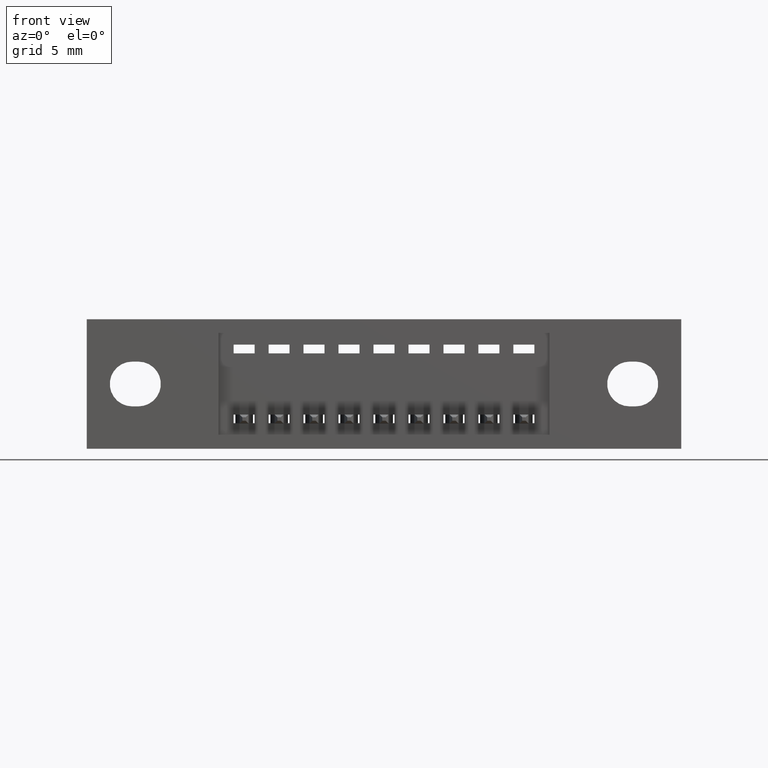
[diagram: clean part render]
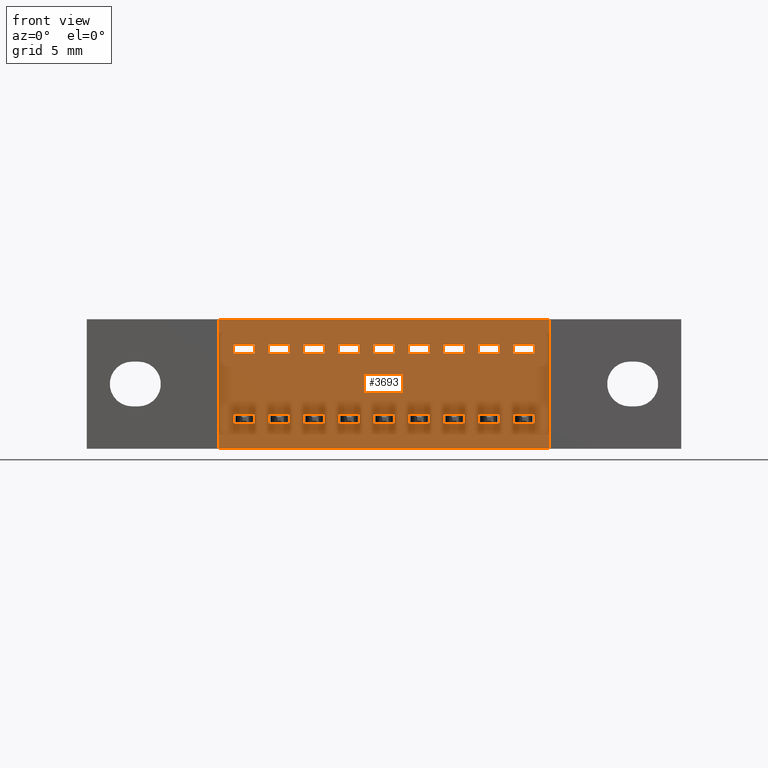
[diagram: same view with one face highlighted and labeled with its STEP entity id]
A machine part, front view. The second image highlights one B-rep face of the part: STEP entity #3693.
In plain terms, the highlighted planar face has unit normal (0, 1, 0).
Its self-contained STEP definition (entity closure, byte-faithful):
#62 = EDGE_LOOP ( 'NONE', ( #5073, #6494, #3613, #6373 ) ) ;
#76 = EDGE_CURVE ( 'NONE', #1878, #2244, #144, .T. ) ;
#88 = LINE ( 'NONE', #1581, #8224 ) ;
#100 = LINE ( 'NONE', #6465, #1945 ) ;
#104 = EDGE_LOOP ( 'NONE', ( #4591, #6000, #6724, #5411 ) ) ;
#116 = DIRECTION ( 'NONE',  ( 0.0000000000000000000, 3.414809992080328000E-016, -1.000000000000000000 ) ) ;
#144 = LINE ( 'NONE', #411, #7847 ) ;
#153 = ORIENTED_EDGE ( 'NONE', *, *, #2979, .T. ) ;
#164 = ORIENTED_EDGE ( 'NONE', *, *, #2615, .T. ) ;
#181 = VERTEX_POINT ( 'NONE', #6427 ) ;
#182 = CARTESIAN_POINT ( 'NONE',  ( 0.6200000000000000000, 0.04000000000000000100, -0.2725000000000000800 ) ) ;
#195 = DIRECTION ( 'NONE',  ( 1.000000000000000000, -0.0000000000000000000, -0.0000000000000000000 ) ) ;
#207 = CARTESIAN_POINT ( 'NONE',  ( 0.8199999999999998400, 0.04000000000000000100, -0.2725000000000000800 ) ) ;
#220 = VERTEX_POINT ( 'NONE', #3926 ) ;
#237 = CARTESIAN_POINT ( 'NONE',  ( 0.5800000000000000700, 0.04000000000000000100, -0.09750000000000000300 ) ) ;
#267 = VECTOR ( 'NONE', #1044, 39.37007874015748100 ) ;
#275 = CARTESIAN_POINT ( 'NONE',  ( 0.8799999999999998900, 0.04000000000000000800, -0.07250000000000002300 ) ) ;
#283 = VERTEX_POINT ( 'NONE', #5546 ) ;
#290 = VERTEX_POINT ( 'NONE', #9446 ) ;
#299 = VECTOR ( 'NONE', #1269, 39.37007874015748100 ) ;
#301 = CARTESIAN_POINT ( 'NONE',  ( 1.220000000000000000, 0.04000000000000000800, -0.07250000000000009200 ) ) ;
#316 = DIRECTION ( 'NONE',  ( 0.0000000000000000000, 3.414809992080328000E-016, -1.000000000000000000 ) ) ;
#324 = DIRECTION ( 'NONE',  ( -0.0000000000000000000, -3.414809992080328000E-016, -1.000000000000000000 ) ) ;
#360 = LINE ( 'NONE', #980, #4294 ) ;
#385 = CARTESIAN_POINT ( 'NONE',  ( 0.4799999999999999800, 0.04000000000000000100, -0.2725000000000000200 ) ) ;
#407 = VECTOR ( 'NONE', #9401, 39.37007874015748100 ) ;
#411 = CARTESIAN_POINT ( 'NONE',  ( 0.5200000000000000200, 0.04000000000000000800, -0.2975000000000000400 ) ) ;
#446 = EDGE_LOOP ( 'NONE', ( #1907, #1870, #2318, #5008 ) ) ;
#448 = LINE ( 'NONE', #2059, #4398 ) ;
#455 = CARTESIAN_POINT ( 'NONE',  ( 1.119999999999999900, 0.04000000000000000100, -0.09750000000000008700 ) ) ;
#495 = DIRECTION ( 'NONE',  ( -0.0000000000000000000, -3.414809992080328000E-016, -1.000000000000000000 ) ) ;
#503 = VECTOR ( 'NONE', #3456, 39.37007874015748100 ) ;
#520 = ORIENTED_EDGE ( 'NONE', *, *, #1410, .F. ) ;
#532 = VERTEX_POINT ( 'NONE', #3941 ) ;
#534 = LINE ( 'NONE', #7711, #299 ) ;
#579 = DIRECTION ( 'NONE',  ( -0.0000000000000000000, -3.414809992080328000E-016, -1.000000000000000000 ) ) ;
#620 = CARTESIAN_POINT ( 'NONE',  ( 0.5200000000000000200, 0.04000000000000000800, -0.07249999999999999500 ) ) ;
#626 = EDGE_CURVE ( 'NONE', #3559, #2278, #8825, .T. ) ;
#641 = CARTESIAN_POINT ( 'NONE',  ( 0.6799999999999999400, 0.04000000000000000100, -0.2725000000000000800 ) ) ;
#647 = VERTEX_POINT ( 'NONE', #2719 ) ;
#652 = CARTESIAN_POINT ( 'NONE',  ( 0.6200000000000000000, 0.04000000000000000100, -0.09750000000000001700 ) ) ;
#656 = DIRECTION ( 'NONE',  ( 1.000000000000000000, -0.0000000000000000000, -0.0000000000000000000 ) ) ;
#661 = VERTEX_POINT ( 'NONE', #7721 ) ;
#669 = VECTOR ( 'NONE', #5345, 39.37007874015748100 ) ;
#675 = ORIENTED_EDGE ( 'NONE', *, *, #1616, .T. ) ;
#687 = LINE ( 'NONE', #1887, #6869 ) ;
#706 = DIRECTION ( 'NONE',  ( 1.000000000000000000, -0.0000000000000000000, -0.0000000000000000000 ) ) ;
#712 = VECTOR ( 'NONE', #8978, 39.37007874015748100 ) ;
#721 = DIRECTION ( 'NONE',  ( -0.0000000000000000000, -3.414809992080328000E-016, -1.000000000000000000 ) ) ;
#741 = EDGE_CURVE ( 'NONE', #3522, #2236, #7724, .T. ) ;
#748 = LINE ( 'NONE', #1459, #3134 ) ;
#753 = VERTEX_POINT ( 'NONE', #6500 ) ;
#758 = LINE ( 'NONE', #1200, #2639 ) ;
#769 = LINE ( 'NONE', #3561, #503 ) ;
#773 = DIRECTION ( 'NONE',  ( -0.0000000000000000000, -0.0000000000000000000, -1.000000000000000000 ) ) ;
#813 = CARTESIAN_POINT ( 'NONE',  ( 1.020000000000000000, 0.04000000000000000100, -0.2725000000000000800 ) ) ;
#821 = FACE_BOUND ( 'NONE', #9665, .T. ) ;
#859 = VERTEX_POINT ( 'NONE', #6136 ) ;
#875 = CARTESIAN_POINT ( 'NONE',  ( 0.8199999999999998400, 0.04000000000000000100, -0.2725000000000000800 ) ) ;
#888 = VERTEX_POINT ( 'NONE', #1792 ) ;
#903 = VECTOR ( 'NONE', #4555, 39.37007874015748100 ) ;
#906 = EDGE_CURVE ( 'NONE', #9666, #5195, #2499, .T. ) ;
#910 = LINE ( 'NONE', #9430, #407 ) ;
#927 = VECTOR ( 'NONE', #1437, 39.37007874015748100 ) ;
#931 = CARTESIAN_POINT ( 'NONE',  ( 0.5200000000000000200, 0.04000000000000000100, -0.09750000000000000300 ) ) ;
#939 = EDGE_CURVE ( 'NONE', #1382, #8822, #4302, .T. ) ;
#979 = CARTESIAN_POINT ( 'NONE',  ( 0.5200000000000000200, 0.04000000000000000800, -0.07249999999999999500 ) ) ;
#980 = CARTESIAN_POINT ( 'NONE',  ( 1.020000000000000000, 0.04000000000000000100, -0.2725000000000000800 ) ) ;
#1005 = CARTESIAN_POINT ( 'NONE',  ( 0.5200000000000000200, 0.04000000000000000100, -0.2725000000000000200 ) ) ;
#1026 = VERTEX_POINT ( 'NONE', #4236 ) ;
#1032 = DIRECTION ( 'NONE',  ( -0.0000000000000000000, -3.414809992080328000E-016, -1.000000000000000000 ) ) ;
#1034 = ORIENTED_EDGE ( 'NONE', *, *, #8713, .T. ) ;
#1044 = DIRECTION ( 'NONE',  ( 1.000000000000000000, -0.0000000000000000000, -0.0000000000000000000 ) ) ;
#1065 = FACE_BOUND ( 'NONE', #62, .T. ) ;
#1077 = LINE ( 'NONE', #5380, #2706 ) ;
#1099 = CARTESIAN_POINT ( 'NONE',  ( 1.323000000000000200, 0.04000000000000000100, -1.895600338963814900E-033 ) ) ;
#1111 = CARTESIAN_POINT ( 'NONE',  ( 1.220000000000000000, 0.04000000000000000100, -0.09750000000000008700 ) ) ;
#1126 = VECTOR ( 'NONE', #316, 39.37007874015748100 ) ;
#1152 = ORIENTED_EDGE ( 'NONE', *, *, #9307, .F. ) ;
#1168 = DIRECTION ( 'NONE',  ( 0.0000000000000000000, 3.414809992080328000E-016, -1.000000000000000000 ) ) ;
#1172 = EDGE_CURVE ( 'NONE', #8508, #9389, #7934, .T. ) ;
#1194 = LINE ( 'NONE', #4751, #3082 ) ;
#1200 = CARTESIAN_POINT ( 'NONE',  ( 0.4200000000000000400, 0.04000000000000000100, -0.2725000000000000200 ) ) ;
#1228 = DIRECTION ( 'NONE',  ( 1.000000000000000000, -0.0000000000000000000, -0.0000000000000000000 ) ) ;
#1269 = DIRECTION ( 'NONE',  ( -0.0000000000000000000, -3.414809992080328000E-016, -1.000000000000000000 ) ) ;
#1278 = EDGE_CURVE ( 'NONE', #1976, #1642, #8938, .T. ) ;
#1283 = CARTESIAN_POINT ( 'NONE',  ( 0.3770000000000000600, 0.04000000000000000100, -0.3700000000000000000 ) ) ;
#1289 = VERTEX_POINT ( 'NONE', #7112 ) ;
#1293 = VECTOR ( 'NONE', #8884, 39.37007874015748100 ) ;
#1300 = VERTEX_POINT ( 'NONE', #3075 ) ;
#1312 = FACE_OUTER_BOUND ( 'NONE', #2344, .T. ) ;
#1323 = LINE ( 'NONE', #8301, #5475 ) ;
#1328 = CARTESIAN_POINT ( 'NONE',  ( 0.6799999999999999400, 0.04000000000000000800, -0.07250000000000000900 ) ) ;
#1352 = DIRECTION ( 'NONE',  ( 0.0000000000000000000, 3.414809992080328000E-016, -1.000000000000000000 ) ) ;
#1368 = EDGE_CURVE ( 'NONE', #8605, #3422, #360, .T. ) ;
#1382 = VERTEX_POINT ( 'NONE', #979 ) ;
#1393 = DIRECTION ( 'NONE',  ( -0.0000000000000000000, -3.414809992080328000E-016, -1.000000000000000000 ) ) ;
#1399 = EDGE_LOOP ( 'NONE', ( #5695, #4814, #5482, #5718 ) ) ;
#1410 = EDGE_CURVE ( 'NONE', #859, #5330, #5839, .T. ) ;
#1437 = DIRECTION ( 'NONE',  ( 0.0000000000000000000, 3.414809992080328000E-016, -1.000000000000000000 ) ) ;
#1445 = CARTESIAN_POINT ( 'NONE',  ( 0.4200000000000000400, 0.04000000000000000100, -0.09749999999999998900 ) ) ;
#1459 = CARTESIAN_POINT ( 'NONE',  ( 1.020000000000000000, 0.04000000000000000100, -0.09750000000000007300 ) ) ;
#1480 = DIRECTION ( 'NONE',  ( 1.000000000000000000, -0.0000000000000000000, -0.0000000000000000000 ) ) ;
#1485 = EDGE_CURVE ( 'NONE', #220, #4688, #5151, .T. ) ;
#1530 = LINE ( 'NONE', #8554, #1293 ) ;
#1547 = FACE_BOUND ( 'NONE', #3012, .T. ) ;
#1561 = DIRECTION ( 'NONE',  ( 1.000000000000000000, -0.0000000000000000000, -0.0000000000000000000 ) ) ;
#1563 = ORIENTED_EDGE ( 'NONE', *, *, #3028, .T. ) ;
#1571 = CARTESIAN_POINT ( 'NONE',  ( 0.5800000000000000700, 0.04000000000000000100, -0.2725000000000000200 ) ) ;
#1581 = CARTESIAN_POINT ( 'NONE',  ( 1.119999999999999900, 0.04000000000000000100, -0.2725000000000001300 ) ) ;
#1591 = LINE ( 'NONE', #3574, #5275 ) ;
#1613 = ORIENTED_EDGE ( 'NONE', *, *, #8053, .F. ) ;
#1616 = EDGE_CURVE ( 'NONE', #2652, #6038, #9577, .T. ) ;
#1618 = VERTEX_POINT ( 'NONE', #5511 ) ;
#1621 = ORIENTED_EDGE ( 'NONE', *, *, #2293, .T. ) ;
#1639 = VERTEX_POINT ( 'NONE', #7861 ) ;
#1642 = VERTEX_POINT ( 'NONE', #8056 ) ;
#1671 = VERTEX_POINT ( 'NONE', #2248 ) ;
#1691 = ORIENTED_EDGE ( 'NONE', *, *, #1936, .T. ) ;
#1698 = DIRECTION ( 'NONE',  ( -0.0000000000000000000, 1.000000000000000000, 0.0000000000000000000 ) ) ;
#1734 = ORIENTED_EDGE ( 'NONE', *, *, #1172, .F. ) ;
#1747 = EDGE_LOOP ( 'NONE', ( #6645, #7507, #3064, #2328 ) ) ;
#1774 = LINE ( 'NONE', #7904, #3629 ) ;
#1782 = ORIENTED_EDGE ( 'NONE', *, *, #7633, .T. ) ;
#1792 = CARTESIAN_POINT ( 'NONE',  ( 1.179999999999999900, 0.04000000000000000800, -0.07250000000000007800 ) ) ;
#1793 = DIRECTION ( 'NONE',  ( -0.0000000000000000000, -3.414809992080328000E-016, -1.000000000000000000 ) ) ;
#1794 = VERTEX_POINT ( 'NONE', #6617 ) ;
#1805 = FACE_BOUND ( 'NONE', #1747, .T. ) ;
#1819 = LINE ( 'NONE', #4288, #2081 ) ;
#1820 = ORIENTED_EDGE ( 'NONE', *, *, #4637, .T. ) ;
#1845 = VECTOR ( 'NONE', #324, 39.37007874015748100 ) ;
#1855 = ORIENTED_EDGE ( 'NONE', *, *, #1997, .F. ) ;
#1870 = ORIENTED_EDGE ( 'NONE', *, *, #4430, .F. ) ;
#1875 = DIRECTION ( 'NONE',  ( 0.0000000000000000000, 3.414809992080328000E-016, -1.000000000000000000 ) ) ;
#1878 = VERTEX_POINT ( 'NONE', #2970 ) ;
#1882 = EDGE_CURVE ( 'NONE', #3477, #8310, #3807, .T. ) ;
#1883 = ORIENTED_EDGE ( 'NONE', *, *, #4203, .F. ) ;
#1887 = CARTESIAN_POINT ( 'NONE',  ( 0.7199999999999998600, 0.04000000000000000800, -0.2975000000000001000 ) ) ;
#1907 = ORIENTED_EDGE ( 'NONE', *, *, #7436, .F. ) ;
#1917 = CARTESIAN_POINT ( 'NONE',  ( 0.8799999999999998900, 0.04000000000000000100, -0.2725000000000000800 ) ) ;
#1936 = EDGE_CURVE ( 'NONE', #8508, #6655, #3570, .T. ) ;
#1940 = LINE ( 'NONE', #5407, #6055 ) ;
#1945 = VECTOR ( 'NONE', #5856, 39.37007874015748100 ) ;
#1962 = DIRECTION ( 'NONE',  ( 0.0000000000000000000, 3.414809992080328000E-016, -1.000000000000000000 ) ) ;
#1971 = DIRECTION ( 'NONE',  ( 0.0000000000000000000, 0.0000000000000000000, 1.000000000000000000 ) ) ;
#1976 = VERTEX_POINT ( 'NONE', #5706 ) ;
#1981 = VERTEX_POINT ( 'NONE', #4693 ) ;
#1997 = EDGE_CURVE ( 'NONE', #1026, #4969, #6680, .T. ) ;
#2033 = ORIENTED_EDGE ( 'NONE', *, *, #8898, .F. ) ;
#2059 = CARTESIAN_POINT ( 'NONE',  ( 0.4200000000000000400, 0.04000000000000000800, -0.2975000000000000400 ) ) ;
#2081 = VECTOR ( 'NONE', #8012, 39.37007874015748100 ) ;
#2098 = VECTOR ( 'NONE', #5523, 39.37007874015748100 ) ;
#2115 = LINE ( 'NONE', #2137, #3966 ) ;
#2117 = DIRECTION ( 'NONE',  ( 0.0000000000000000000, -0.0000000000000000000, 1.000000000000000000 ) ) ;
#2122 = DIRECTION ( 'NONE',  ( 0.0000000000000000000, 3.414809992080328000E-016, -1.000000000000000000 ) ) ;
#2137 = CARTESIAN_POINT ( 'NONE',  ( 0.9199999999999999300, 0.04000000000000000800, -0.07250000000000005100 ) ) ;
#2140 = ORIENTED_EDGE ( 'NONE', *, *, #9616, .F. ) ;
#2148 = ORIENTED_EDGE ( 'NONE', *, *, #9023, .F. ) ;
#2233 = ORIENTED_EDGE ( 'NONE', *, *, #6418, .F. ) ;
#2236 = VERTEX_POINT ( 'NONE', #6858 ) ;
#2244 = VERTEX_POINT ( 'NONE', #7768 ) ;
#2248 = CARTESIAN_POINT ( 'NONE',  ( 1.079999999999999800, 0.04000000000000000800, -0.07250000000000006400 ) ) ;
#2258 = EDGE_CURVE ( 'NONE', #9113, #753, #2716, .T. ) ;
#2278 = VERTEX_POINT ( 'NONE', #7943 ) ;
#2281 = DIRECTION ( 'NONE',  ( 1.000000000000000000, -0.0000000000000000000, -0.0000000000000000000 ) ) ;
#2293 = EDGE_CURVE ( 'NONE', #6655, #6560, #100, .T. ) ;
#2315 = CARTESIAN_POINT ( 'NONE',  ( 0.7199999999999998600, 0.04000000000000000100, -0.2725000000000000800 ) ) ;
#2318 = ORIENTED_EDGE ( 'NONE', *, *, #3396, .T. ) ;
#2328 = ORIENTED_EDGE ( 'NONE', *, *, #9357, .F. ) ;
#2344 = EDGE_LOOP ( 'NONE', ( #5616, #4724, #4750, #4763 ) ) ;
#2352 = EDGE_CURVE ( 'NONE', #1300, #2931, #7577, .T. ) ;
#2367 = VERTEX_POINT ( 'NONE', #7809 ) ;
#2447 = DIRECTION ( 'NONE',  ( 1.000000000000000000, -0.0000000000000000000, -0.0000000000000000000 ) ) ;
#2450 = ORIENTED_EDGE ( 'NONE', *, *, #9522, .F. ) ;
#2457 = EDGE_CURVE ( 'NONE', #7684, #5911, #448, .T. ) ;
#2458 = VECTOR ( 'NONE', #7317, 39.37007874015748100 ) ;
#2499 = LINE ( 'NONE', #2645, #6343 ) ;
#2523 = CARTESIAN_POINT ( 'NONE',  ( 0.9199999999999999300, 0.04000000000000000100, -0.2725000000000000800 ) ) ;
#2533 = VERTEX_POINT ( 'NONE', #7937 ) ;
#2539 = ORIENTED_EDGE ( 'NONE', *, *, #5404, .T. ) ;
#2601 = VECTOR ( 'NONE', #9799, 39.37007874015748100 ) ;
#2615 = EDGE_CURVE ( 'NONE', #3770, #1671, #1323, .T. ) ;
#2639 = VECTOR ( 'NONE', #1168, 39.37007874015748100 ) ;
#2645 = CARTESIAN_POINT ( 'NONE',  ( 0.8199999999999998400, 0.04000000000000000800, -0.07250000000000002300 ) ) ;
#2652 = VERTEX_POINT ( 'NONE', #9531 ) ;
#2683 = EDGE_CURVE ( 'NONE', #888, #1639, #6766, .T. ) ;
#2696 = EDGE_CURVE ( 'NONE', #2367, #1618, #8445, .T. ) ;
#2699 = CARTESIAN_POINT ( 'NONE',  ( 0.7199999999999998600, 0.04000000000000000100, -0.09750000000000001700 ) ) ;
#2700 = EDGE_LOOP ( 'NONE', ( #4066, #5677, #6098, #5949 ) ) ;
#2706 = VECTOR ( 'NONE', #1971, 39.37007874015748100 ) ;
#2716 = LINE ( 'NONE', #1283, #8231 ) ;
#2719 = CARTESIAN_POINT ( 'NONE',  ( 0.9799999999999999800, 0.04000000000000000800, -0.07250000000000005100 ) ) ;
#2734 = CARTESIAN_POINT ( 'NONE',  ( 0.4200000000000000400, 0.04000000000000000100, -0.2725000000000000200 ) ) ;
#2761 = VERTEX_POINT ( 'NONE', #1445 ) ;
#2763 = ORIENTED_EDGE ( 'NONE', *, *, #4806, .F. ) ;
#2784 = LINE ( 'NONE', #5425, #669 ) ;
#2785 = DIRECTION ( 'NONE',  ( -0.0000000000000000000, -3.414809992080328000E-016, -1.000000000000000000 ) ) ;
#2812 = CARTESIAN_POINT ( 'NONE',  ( 1.220000000000000000, 0.04000000000000000100, -0.09750000000000008700 ) ) ;
#2817 = CARTESIAN_POINT ( 'NONE',  ( 1.220000000000000000, 0.04000000000000000800, -0.07250000000000009200 ) ) ;
#2862 = VECTOR ( 'NONE', #4811, 39.37007874015748100 ) ;
#2879 = EDGE_CURVE ( 'NONE', #3522, #532, #7106, .T. ) ;
#2931 = VERTEX_POINT ( 'NONE', #3249 ) ;
#2944 = FACE_BOUND ( 'NONE', #7614, .T. ) ;
#2970 = CARTESIAN_POINT ( 'NONE',  ( 0.5200000000000000200, 0.04000000000000000800, -0.2975000000000000400 ) ) ;
#2979 = EDGE_CURVE ( 'NONE', #7234, #4966, #6565, .T. ) ;
#3012 = EDGE_LOOP ( 'NONE', ( #2450, #1782, #1820, #1855 ) ) ;
#3026 = CARTESIAN_POINT ( 'NONE',  ( 0.4200000000000000400, 0.04000000000000000800, -0.2975000000000000400 ) ) ;
#3028 = EDGE_CURVE ( 'NONE', #7875, #3339, #5826, .T. ) ;
#3046 = CARTESIAN_POINT ( 'NONE',  ( 1.220000000000000000, 0.04000000000000000100, -0.2725000000000001300 ) ) ;
#3051 = VECTOR ( 'NONE', #8447, 39.37007874015748100 ) ;
#3064 = ORIENTED_EDGE ( 'NONE', *, *, #2683, .T. ) ;
#3075 = CARTESIAN_POINT ( 'NONE',  ( 1.179999999999999900, 0.04000000000000000100, -0.2725000000000001300 ) ) ;
#3082 = VECTOR ( 'NONE', #5501, 39.37007874015748100 ) ;
#3095 = LINE ( 'NONE', #237, #8569 ) ;
#3111 = VECTOR ( 'NONE', #7422, 39.37007874015748100 ) ;
#3129 = EDGE_CURVE ( 'NONE', #8605, #5522, #7118, .T. ) ;
#3134 = VECTOR ( 'NONE', #1793, 39.37007874015748100 ) ;
#3152 = CARTESIAN_POINT ( 'NONE',  ( 1.280000000000000000, 0.04000000000000000100, -0.09750000000000008700 ) ) ;
#3155 = ORIENTED_EDGE ( 'NONE', *, *, #3129, .T. ) ;
#3193 = FACE_BOUND ( 'NONE', #104, .T. ) ;
#3233 = CARTESIAN_POINT ( 'NONE',  ( 0.7799999999999999200, 0.04000000000000000100, -0.2975000000000001000 ) ) ;
#3235 = DIRECTION ( 'NONE',  ( 1.000000000000000000, -0.0000000000000000000, -0.0000000000000000000 ) ) ;
#3241 = EDGE_CURVE ( 'NONE', #6038, #6069, #7442, .T. ) ;
#3247 = LINE ( 'NONE', #385, #1126 ) ;
#3249 = CARTESIAN_POINT ( 'NONE',  ( 1.179999999999999900, 0.04000000000000000100, -0.2975000000000001500 ) ) ;
#3266 = LINE ( 'NONE', #4533, #903 ) ;
#3275 = VECTOR ( 'NONE', #6671, 39.37007874015748100 ) ;
#3296 = CARTESIAN_POINT ( 'NONE',  ( 0.6200000000000000000, 0.04000000000000000100, -0.09750000000000001700 ) ) ;
#3312 = EDGE_CURVE ( 'NONE', #9729, #3722, #1077, .T. ) ;
#3317 = EDGE_LOOP ( 'NONE', ( #9502, #675, #8726, #5072 ) ) ;
#3331 = VERTEX_POINT ( 'NONE', #4723 ) ;
#3339 = VERTEX_POINT ( 'NONE', #4710 ) ;
#3343 = CARTESIAN_POINT ( 'NONE',  ( 0.6799999999999999400, 0.04000000000000000100, -0.2975000000000001000 ) ) ;
#3385 = ORIENTED_EDGE ( 'NONE', *, *, #5495, .T. ) ;
#3390 = CARTESIAN_POINT ( 'NONE',  ( 0.9799999999999999800, 0.04000000000000000100, -0.09750000000000005900 ) ) ;
#3396 = EDGE_CURVE ( 'NONE', #3331, #1300, #88, .T. ) ;
#3399 = EDGE_CURVE ( 'NONE', #3722, #9113, #6309, .T. ) ;
#3422 = VERTEX_POINT ( 'NONE', #7716 ) ;
#3426 = FACE_BOUND ( 'NONE', #1399, .T. ) ;
#3456 = DIRECTION ( 'NONE',  ( 1.000000000000000000, -0.0000000000000000000, -0.0000000000000000000 ) ) ;
#3458 = EDGE_CURVE ( 'NONE', #5534, #1878, #5592, .T. ) ;
#3477 = VERTEX_POINT ( 'NONE', #6677 ) ;
#3487 = DIRECTION ( 'NONE',  ( 1.000000000000000000, -0.0000000000000000000, -0.0000000000000000000 ) ) ;
#3493 = DIRECTION ( 'NONE',  ( 1.000000000000000000, -0.0000000000000000000, -0.0000000000000000000 ) ) ;
#3522 = VERTEX_POINT ( 'NONE', #2315 ) ;
#3525 = VERTEX_POINT ( 'NONE', #7796 ) ;
#3559 = VERTEX_POINT ( 'NONE', #9461 ) ;
#3561 = CARTESIAN_POINT ( 'NONE',  ( 0.4200000000000000400, 0.04000000000000000100, -0.09749999999999998900 ) ) ;
#3570 = LINE ( 'NONE', #8927, #5141 ) ;
#3574 = CARTESIAN_POINT ( 'NONE',  ( 0.6200000000000000000, 0.04000000000000000800, -0.2975000000000001000 ) ) ;
#3613 = ORIENTED_EDGE ( 'NONE', *, *, #1485, .T. ) ;
#3629 = VECTOR ( 'NONE', #7814, 39.37007874015748100 ) ;
#3650 = VECTOR ( 'NONE', #2785, 39.37007874015748100 ) ;
#3659 = FACE_BOUND ( 'NONE', #2700, .T. ) ;
#3685 = CARTESIAN_POINT ( 'NONE',  ( 0.9799999999999999800, 0.04000000000000000100, -0.2725000000000000800 ) ) ;
#3693 = ADVANCED_FACE ( 'NONE', ( #1805, #5699, #1547, #9338, #7432, #3659, #5467, #3426, #1312, #9127, #7222, #5241, #3193, #1065, #8895, #6991, #5019, #2944, #821 ), #3707, .F. ) ;
#3707 = PLANE ( 'NONE',  #8877 ) ;
#3722 = VERTEX_POINT ( 'NONE', #6439 ) ;
#3735 = VECTOR ( 'NONE', #4865, 39.37007874015748100 ) ;
#3742 = DIRECTION ( 'NONE',  ( 1.000000000000000000, -0.0000000000000000000, -0.0000000000000000000 ) ) ;
#3770 = VERTEX_POINT ( 'NONE', #9189 ) ;
#3807 = LINE ( 'NONE', #6859, #9255 ) ;
#3907 = CARTESIAN_POINT ( 'NONE',  ( 0.5800000000000000700, 0.04000000000000000100, -0.2725000000000000200 ) ) ;
#3921 = EDGE_CURVE ( 'NONE', #532, #6738, #687, .T. ) ;
#3926 = CARTESIAN_POINT ( 'NONE',  ( 0.8199999999999998400, 0.04000000000000000100, -0.2725000000000000800 ) ) ;
#3941 = CARTESIAN_POINT ( 'NONE',  ( 0.7199999999999998600, 0.04000000000000000800, -0.2975000000000001000 ) ) ;
#3952 = VECTOR ( 'NONE', #1352, 39.37007874015748100 ) ;
#3966 = VECTOR ( 'NONE', #6754, 39.37007874015748100 ) ;
#3973 = VECTOR ( 'NONE', #656, 39.37007874015748100 ) ;
#3988 = CARTESIAN_POINT ( 'NONE',  ( 0.5200000000000000200, 0.04000000000000000100, -0.09750000000000000300 ) ) ;
#3999 = VERTEX_POINT ( 'NONE', #3988 ) ;
#4005 = EDGE_CURVE ( 'NONE', #4213, #5868, #9542, .T. ) ;
#4019 = CARTESIAN_POINT ( 'NONE',  ( 0.9799999999999999800, 0.04000000000000000100, -0.2975000000000001000 ) ) ;
#4021 = LINE ( 'NONE', #7103, #5799 ) ;
#4035 = VECTOR ( 'NONE', #6085, 39.37007874015748100 ) ;
#4066 = ORIENTED_EDGE ( 'NONE', *, *, #3921, .F. ) ;
#4089 = EDGE_LOOP ( 'NONE', ( #2140, #6503, #3155, #3385 ) ) ;
#4091 = LINE ( 'NONE', #1917, #7849 ) ;
#4170 = LINE ( 'NONE', #8896, #9804 ) ;
#4182 = VERTEX_POINT ( 'NONE', #7307 ) ;
#4203 = EDGE_CURVE ( 'NONE', #4182, #1981, #4250, .T. ) ;
#4213 = VERTEX_POINT ( 'NONE', #6917 ) ;
#4229 = VERTEX_POINT ( 'NONE', #3907 ) ;
#4231 = EDGE_CURVE ( 'NONE', #290, #5575, #4021, .T. ) ;
#4236 = CARTESIAN_POINT ( 'NONE',  ( 0.9199999999999999300, 0.04000000000000000100, -0.09750000000000005900 ) ) ;
#4250 = LINE ( 'NONE', #7144, #7990 ) ;
#4254 = VERTEX_POINT ( 'NONE', #2812 ) ;
#4279 = VECTOR ( 'NONE', #8867, 39.37007874015748100 ) ;
#4288 = CARTESIAN_POINT ( 'NONE',  ( 1.119999999999999900, 0.04000000000000000100, -0.09750000000000008700 ) ) ;
#4294 = VECTOR ( 'NONE', #9443, 39.37007874015748100 ) ;
#4302 = LINE ( 'NONE', #620, #8261 ) ;
#4331 = EDGE_CURVE ( 'NONE', #4229, #2244, #8997, .T. ) ;
#4367 = LINE ( 'NONE', #6634, #8091 ) ;
#4398 = VECTOR ( 'NONE', #2447, 39.37007874015748100 ) ;
#4430 = EDGE_CURVE ( 'NONE', #3331, #283, #4367, .T. ) ;
#4442 = CARTESIAN_POINT ( 'NONE',  ( 0.9199999999999999300, 0.04000000000000000100, -0.2725000000000000800 ) ) ;
#4470 = VECTOR ( 'NONE', #5277, 39.37007874015748100 ) ;
#4488 = VERTEX_POINT ( 'NONE', #9293 ) ;
#4533 = CARTESIAN_POINT ( 'NONE',  ( 0.9199999999999999300, 0.04000000000000000800, -0.2975000000000001000 ) ) ;
#4544 = EDGE_CURVE ( 'NONE', #753, #9729, #1530, .T. ) ;
#4555 = DIRECTION ( 'NONE',  ( 1.000000000000000000, -0.0000000000000000000, -0.0000000000000000000 ) ) ;
#4591 = ORIENTED_EDGE ( 'NONE', *, *, #4005, .F. ) ;
#4600 = ORIENTED_EDGE ( 'NONE', *, *, #7292, .T. ) ;
#4620 = ORIENTED_EDGE ( 'NONE', *, *, #2457, .F. ) ;
#4637 = EDGE_CURVE ( 'NONE', #647, #4969, #534, .T. ) ;
#4663 = ORIENTED_EDGE ( 'NONE', *, *, #5913, .T. ) ;
#4671 = LINE ( 'NONE', #8139, #5144 ) ;
#4688 = VERTEX_POINT ( 'NONE', #7199 ) ;
#4693 = CARTESIAN_POINT ( 'NONE',  ( 0.8799999999999998900, 0.04000000000000000100, -0.09750000000000003100 ) ) ;
#4710 = CARTESIAN_POINT ( 'NONE',  ( 0.7799999999999999200, 0.04000000000000000800, -0.07250000000000002300 ) ) ;
#4718 = CARTESIAN_POINT ( 'NONE',  ( 1.119999999999999900, 0.04000000000000000800, -0.2975000000000001500 ) ) ;
#4723 = CARTESIAN_POINT ( 'NONE',  ( 1.119999999999999900, 0.04000000000000000100, -0.2725000000000001300 ) ) ;
#4724 = ORIENTED_EDGE ( 'NONE', *, *, #3399, .T. ) ;
#4746 = EDGE_LOOP ( 'NONE', ( #2233, #1734, #1691, #1621 ) ) ;
#4750 = ORIENTED_EDGE ( 'NONE', *, *, #2258, .T. ) ;
#4751 = CARTESIAN_POINT ( 'NONE',  ( 1.020000000000000000, 0.04000000000000000800, -0.2975000000000001000 ) ) ;
#4763 = ORIENTED_EDGE ( 'NONE', *, *, #4544, .T. ) ;
#4781 = VECTOR ( 'NONE', #9474, 39.37007874015748100 ) ;
#4806 = EDGE_CURVE ( 'NONE', #9666, #4182, #2784, .T. ) ;
#4811 = DIRECTION ( 'NONE',  ( 0.0000000000000000000, 3.414809992080328000E-016, -1.000000000000000000 ) ) ;
#4814 = ORIENTED_EDGE ( 'NONE', *, *, #3458, .F. ) ;
#4859 = VECTOR ( 'NONE', #9506, 39.37007874015748100 ) ;
#4865 = DIRECTION ( 'NONE',  ( 1.000000000000000000, -0.0000000000000000000, -0.0000000000000000000 ) ) ;
#4895 = CARTESIAN_POINT ( 'NONE',  ( 0.5200000000000000200, 0.04000000000000000100, -0.09750000000000000300 ) ) ;
#4938 = CARTESIAN_POINT ( 'NONE',  ( 0.4200000000000000400, 0.04000000000000000100, -0.09749999999999998900 ) ) ;
#4966 = VERTEX_POINT ( 'NONE', #3343 ) ;
#4969 = VERTEX_POINT ( 'NONE', #3390 ) ;
#4990 = EDGE_CURVE ( 'NONE', #5168, #1976, #9523, .T. ) ;
#5008 = ORIENTED_EDGE ( 'NONE', *, *, #2352, .T. ) ;
#5019 = FACE_BOUND ( 'NONE', #9449, .T. ) ;
#5042 = LINE ( 'NONE', #6919, #5258 ) ;
#5072 = ORIENTED_EDGE ( 'NONE', *, *, #6692, .F. ) ;
#5073 = ORIENTED_EDGE ( 'NONE', *, *, #1882, .F. ) ;
#5081 = ORIENTED_EDGE ( 'NONE', *, *, #906, .T. ) ;
#5135 = LINE ( 'NONE', #4938, #6892 ) ;
#5141 = VECTOR ( 'NONE', #1480, 39.37007874015748100 ) ;
#5144 = VECTOR ( 'NONE', #5922, 39.37007874015748100 ) ;
#5149 = EDGE_CURVE ( 'NONE', #1382, #3999, #9630, .T. ) ;
#5151 = LINE ( 'NONE', #207, #3111 ) ;
#5168 = VERTEX_POINT ( 'NONE', #301 ) ;
#5191 = ORIENTED_EDGE ( 'NONE', *, *, #7349, .T. ) ;
#5195 = VERTEX_POINT ( 'NONE', #275 ) ;
#5204 = VECTOR ( 'NONE', #8923, 39.37007874015748100 ) ;
#5241 = FACE_BOUND ( 'NONE', #5730, .T. ) ;
#5258 = VECTOR ( 'NONE', #9754, 39.37007874015748100 ) ;
#5260 = EDGE_LOOP ( 'NONE', ( #5896, #6315, #5818, #5508 ) ) ;
#5273 = EDGE_CURVE ( 'NONE', #4488, #888, #8524, .T. ) ;
#5275 = VECTOR ( 'NONE', #1228, 39.37007874015748100 ) ;
#5277 = DIRECTION ( 'NONE',  ( -0.0000000000000000000, -3.414809992080328000E-016, -1.000000000000000000 ) ) ;
#5278 = EDGE_CURVE ( 'NONE', #3339, #5575, #910, .T. ) ;
#5293 = VECTOR ( 'NONE', #195, 39.37007874015748100 ) ;
#5315 = LINE ( 'NONE', #6750, #3275 ) ;
#5330 = VERTEX_POINT ( 'NONE', #9227 ) ;
#5345 = DIRECTION ( 'NONE',  ( -0.0000000000000000000, -3.414809992080328000E-016, -1.000000000000000000 ) ) ;
#5361 = CARTESIAN_POINT ( 'NONE',  ( 0.6799999999999999400, 0.04000000000000000100, -0.09750000000000001700 ) ) ;
#5380 = CARTESIAN_POINT ( 'NONE',  ( 1.323000000000000200, 0.04000000000000000100, -0.3699999999999999400 ) ) ;
#5404 = EDGE_CURVE ( 'NONE', #1671, #1794, #9094, .T. ) ;
#5407 = CARTESIAN_POINT ( 'NONE',  ( 0.9199999999999999300, 0.04000000000000000100, -0.09750000000000005900 ) ) ;
#5411 = ORIENTED_EDGE ( 'NONE', *, *, #7231, .F. ) ;
#5425 = CARTESIAN_POINT ( 'NONE',  ( 0.8199999999999998400, 0.04000000000000000100, -0.09750000000000003100 ) ) ;
#5467 = FACE_BOUND ( 'NONE', #5260, .T. ) ;
#5475 = VECTOR ( 'NONE', #7714, 39.37007874015748100 ) ;
#5477 = VECTOR ( 'NONE', #1393, 39.37007874015748100 ) ;
#5482 = ORIENTED_EDGE ( 'NONE', *, *, #8313, .T. ) ;
#5495 = EDGE_CURVE ( 'NONE', #5522, #1289, #8991, .T. ) ;
#5501 = DIRECTION ( 'NONE',  ( 1.000000000000000000, -0.0000000000000000000, -0.0000000000000000000 ) ) ;
#5508 = ORIENTED_EDGE ( 'NONE', *, *, #6350, .F. ) ;
#5511 = CARTESIAN_POINT ( 'NONE',  ( 1.280000000000000000, 0.04000000000000000100, -0.2975000000000001500 ) ) ;
#5522 = VERTEX_POINT ( 'NONE', #8284 ) ;
#5523 = DIRECTION ( 'NONE',  ( 1.000000000000000000, -0.0000000000000000000, -0.0000000000000000000 ) ) ;
#5534 = VERTEX_POINT ( 'NONE', #8254 ) ;
#5546 = CARTESIAN_POINT ( 'NONE',  ( 1.119999999999999900, 0.04000000000000000800, -0.2975000000000001500 ) ) ;
#5561 = ORIENTED_EDGE ( 'NONE', *, *, #7116, .F. ) ;
#5575 = VERTEX_POINT ( 'NONE', #8068 ) ;
#5592 = LINE ( 'NONE', #1005, #9438 ) ;
#5615 = VECTOR ( 'NONE', #5800, 39.37007874015748100 ) ;
#5616 = ORIENTED_EDGE ( 'NONE', *, *, #3312, .T. ) ;
#5644 = DIRECTION ( 'NONE',  ( 0.0000000000000000000, 3.414809992080328000E-016, -1.000000000000000000 ) ) ;
#5646 = EDGE_CURVE ( 'NONE', #2236, #6738, #1774, .T. ) ;
#5669 = DIRECTION ( 'NONE',  ( -0.0000000000000000000, -3.414809992080328000E-016, -1.000000000000000000 ) ) ;
#5674 = VERTEX_POINT ( 'NONE', #7736 ) ;
#5677 = ORIENTED_EDGE ( 'NONE', *, *, #2879, .F. ) ;
#5695 = ORIENTED_EDGE ( 'NONE', *, *, #76, .F. ) ;
#5699 = FACE_BOUND ( 'NONE', #446, .T. ) ;
#5703 = VECTOR ( 'NONE', #7197, 39.37007874015748100 ) ;
#5706 = CARTESIAN_POINT ( 'NONE',  ( 1.280000000000000000, 0.04000000000000000800, -0.07250000000000009200 ) ) ;
#5718 = ORIENTED_EDGE ( 'NONE', *, *, #4331, .T. ) ;
#5727 = ORIENTED_EDGE ( 'NONE', *, *, #4231, .F. ) ;
#5730 = EDGE_LOOP ( 'NONE', ( #7277, #6716, #5191, #153 ) ) ;
#5759 = LINE ( 'NONE', #455, #9383 ) ;
#5763 = CARTESIAN_POINT ( 'NONE',  ( 1.020000000000000000, 0.04000000000000000100, -0.09750000000000007300 ) ) ;
#5785 = VECTOR ( 'NONE', #579, 39.37007874015748100 ) ;
#5799 = VECTOR ( 'NONE', #3742, 39.37007874015748100 ) ;
#5800 = DIRECTION ( 'NONE',  ( 1.000000000000000000, -0.0000000000000000000, -0.0000000000000000000 ) ) ;
#5818 = ORIENTED_EDGE ( 'NONE', *, *, #9248, .T. ) ;
#5826 = LINE ( 'NONE', #6321, #9451 ) ;
#5832 = DIRECTION ( 'NONE',  ( 1.000000000000000000, -0.0000000000000000000, -0.0000000000000000000 ) ) ;
#5839 = LINE ( 'NONE', #3046, #7822 ) ;
#5856 = DIRECTION ( 'NONE',  ( 0.0000000000000000000, 3.414809992080328000E-016, -1.000000000000000000 ) ) ;
#5868 = VERTEX_POINT ( 'NONE', #6854 ) ;
#5888 = CARTESIAN_POINT ( 'NONE',  ( 1.179999999999999900, 0.04000000000000000100, -0.2725000000000001300 ) ) ;
#5896 = ORIENTED_EDGE ( 'NONE', *, *, #5149, .F. ) ;
#5911 = VERTEX_POINT ( 'NONE', #6683 ) ;
#5913 = EDGE_CURVE ( 'NONE', #8070, #181, #5315, .T. ) ;
#5922 = DIRECTION ( 'NONE',  ( -0.0000000000000000000, -3.414809992080328000E-016, -1.000000000000000000 ) ) ;
#5949 = ORIENTED_EDGE ( 'NONE', *, *, #5646, .T. ) ;
#5969 = LINE ( 'NONE', #2699, #1845 ) ;
#5984 = CARTESIAN_POINT ( 'NONE',  ( 0.6200000000000000000, 0.04000000000000000100, -0.2725000000000000800 ) ) ;
#6000 = ORIENTED_EDGE ( 'NONE', *, *, #9793, .T. ) ;
#6023 = ORIENTED_EDGE ( 'NONE', *, *, #4990, .T. ) ;
#6029 = CARTESIAN_POINT ( 'NONE',  ( 0.4800000000000000900, 0.04000000000000000100, -0.09749999999999998900 ) ) ;
#6038 = VERTEX_POINT ( 'NONE', #6179 ) ;
#6055 = VECTOR ( 'NONE', #721, 39.37007874015748100 ) ;
#6069 = VERTEX_POINT ( 'NONE', #6029 ) ;
#6085 = DIRECTION ( 'NONE',  ( -1.000000000000000000, -0.0000000000000000000, 2.003805855141453600E-033 ) ) ;
#6098 = ORIENTED_EDGE ( 'NONE', *, *, #741, .T. ) ;
#6136 = CARTESIAN_POINT ( 'NONE',  ( 1.220000000000000000, 0.04000000000000000100, -0.2725000000000001300 ) ) ;
#6179 = CARTESIAN_POINT ( 'NONE',  ( 0.4799999999999999800, 0.04000000000000000800, -0.07249999999999998100 ) ) ;
#6228 = CARTESIAN_POINT ( 'NONE',  ( 1.179999999999999900, 0.04000000000000000100, -0.09750000000000008700 ) ) ;
#6247 = EDGE_CURVE ( 'NONE', #8202, #3525, #6504, .T. ) ;
#6309 = LINE ( 'NONE', #6837, #4035 ) ;
#6315 = ORIENTED_EDGE ( 'NONE', *, *, #939, .T. ) ;
#6321 = CARTESIAN_POINT ( 'NONE',  ( 0.7199999999999998600, 0.04000000000000000800, -0.07250000000000002300 ) ) ;
#6343 = VECTOR ( 'NONE', #8551, 39.37007874015748100 ) ;
#6350 = EDGE_CURVE ( 'NONE', #3999, #2533, #9622, .T. ) ;
#6357 = LINE ( 'NONE', #4718, #7843 ) ;
#6373 = ORIENTED_EDGE ( 'NONE', *, *, #6990, .T. ) ;
#6381 = DIRECTION ( 'NONE',  ( 1.000000000000000000, -0.0000000000000000000, -0.0000000000000000000 ) ) ;
#6418 = EDGE_CURVE ( 'NONE', #9389, #6560, #3266, .T. ) ;
#6427 = CARTESIAN_POINT ( 'NONE',  ( 0.4799999999999999800, 0.04000000000000000100, -0.2725000000000000200 ) ) ;
#6439 = CARTESIAN_POINT ( 'NONE',  ( 1.323000000000000200, 0.04000000000000000100, -1.895600338963814900E-033 ) ) ;
#6465 = CARTESIAN_POINT ( 'NONE',  ( 0.9799999999999999800, 0.04000000000000000100, -0.2725000000000000800 ) ) ;
#6493 = EDGE_LOOP ( 'NONE', ( #4620, #5561, #4663, #4600 ) ) ;
#6494 = ORIENTED_EDGE ( 'NONE', *, *, #8477, .F. ) ;
#6499 = CARTESIAN_POINT ( 'NONE',  ( 0.6200000000000000000, 0.04000000000000000800, -0.07250000000000000900 ) ) ;
#6500 = CARTESIAN_POINT ( 'NONE',  ( 0.3770000000000000600, 0.04000000000000000100, -0.3700000000000000000 ) ) ;
#6503 = ORIENTED_EDGE ( 'NONE', *, *, #1368, .F. ) ;
#6504 = LINE ( 'NONE', #5361, #4470 ) ;
#6560 = VERTEX_POINT ( 'NONE', #4019 ) ;
#6565 = LINE ( 'NONE', #9366, #4279 ) ;
#6617 = CARTESIAN_POINT ( 'NONE',  ( 1.079999999999999800, 0.04000000000000000100, -0.09750000000000007300 ) ) ;
#6634 = CARTESIAN_POINT ( 'NONE',  ( 1.119999999999999900, 0.04000000000000000100, -0.2725000000000001300 ) ) ;
#6645 = ORIENTED_EDGE ( 'NONE', *, *, #7270, .F. ) ;
#6655 = VERTEX_POINT ( 'NONE', #3685 ) ;
#6671 = DIRECTION ( 'NONE',  ( 1.000000000000000000, -0.0000000000000000000, -0.0000000000000000000 ) ) ;
#6677 = CARTESIAN_POINT ( 'NONE',  ( 0.8199999999999998400, 0.04000000000000000800, -0.2975000000000001000 ) ) ;
#6679 = CARTESIAN_POINT ( 'NONE',  ( 0.5800000000000000700, 0.04000000000000000800, -0.07249999999999999500 ) ) ;
#6680 = LINE ( 'NONE', #9661, #2601 ) ;
#6683 = CARTESIAN_POINT ( 'NONE',  ( 0.4800000000000000900, 0.04000000000000000100, -0.2975000000000000400 ) ) ;
#6692 = EDGE_CURVE ( 'NONE', #2761, #6069, #769, .T. ) ;
#6716 = ORIENTED_EDGE ( 'NONE', *, *, #626, .F. ) ;
#6724 = ORIENTED_EDGE ( 'NONE', *, *, #6247, .T. ) ;
#6729 = DIRECTION ( 'NONE',  ( -0.0000000000000000000, -3.414809992080328000E-016, -1.000000000000000000 ) ) ;
#6738 = VERTEX_POINT ( 'NONE', #3233 ) ;
#6750 = CARTESIAN_POINT ( 'NONE',  ( 0.4200000000000000400, 0.04000000000000000100, -0.2725000000000000200 ) ) ;
#6754 = DIRECTION ( 'NONE',  ( 1.000000000000000000, -0.0000000000000000000, -0.0000000000000000000 ) ) ;
#6765 = EDGE_LOOP ( 'NONE', ( #2763, #5081, #7512, #1883 ) ) ;
#6766 = LINE ( 'NONE', #6228, #4781 ) ;
#6815 = LINE ( 'NONE', #182, #5293 ) ;
#6837 = CARTESIAN_POINT ( 'NONE',  ( 0.3770000000000000600, 0.04000000000000000100, 0.0000000000000000000 ) ) ;
#6846 = CARTESIAN_POINT ( 'NONE',  ( 0.7199999999999998600, 0.04000000000000000100, -0.2725000000000000800 ) ) ;
#6854 = CARTESIAN_POINT ( 'NONE',  ( 0.6200000000000000000, 0.04000000000000000100, -0.09750000000000001700 ) ) ;
#6858 = CARTESIAN_POINT ( 'NONE',  ( 0.7799999999999999200, 0.04000000000000000100, -0.2725000000000000800 ) ) ;
#6859 = CARTESIAN_POINT ( 'NONE',  ( 0.8199999999999998400, 0.04000000000000000800, -0.2975000000000001000 ) ) ;
#6869 = VECTOR ( 'NONE', #5832, 39.37007874015748100 ) ;
#6877 = VECTOR ( 'NONE', #5644, 39.37007874015748100 ) ;
#6892 = VECTOR ( 'NONE', #5669, 39.37007874015748100 ) ;
#6917 = CARTESIAN_POINT ( 'NONE',  ( 0.6200000000000000000, 0.04000000000000000800, -0.07250000000000000900 ) ) ;
#6919 = CARTESIAN_POINT ( 'NONE',  ( 1.220000000000000000, 0.04000000000000000800, -0.2975000000000001500 ) ) ;
#6990 = EDGE_CURVE ( 'NONE', #4688, #8310, #4091, .T. ) ;
#6991 = FACE_BOUND ( 'NONE', #4089, .T. ) ;
#7026 = VECTOR ( 'NONE', #7082, 39.37007874015748100 ) ;
#7035 = CARTESIAN_POINT ( 'NONE',  ( 0.7199999999999998600, 0.04000000000000000800, -0.07250000000000002300 ) ) ;
#7082 = DIRECTION ( 'NONE',  ( -0.0000000000000000000, -3.414809992080328000E-016, -1.000000000000000000 ) ) ;
#7103 = CARTESIAN_POINT ( 'NONE',  ( 0.7199999999999998600, 0.04000000000000000100, -0.09750000000000001700 ) ) ;
#7106 = LINE ( 'NONE', #8118, #6877 ) ;
#7112 = CARTESIAN_POINT ( 'NONE',  ( 1.079999999999999800, 0.04000000000000000100, -0.2975000000000001000 ) ) ;
#7116 = EDGE_CURVE ( 'NONE', #8070, #7684, #758, .T. ) ;
#7118 = LINE ( 'NONE', #813, #712 ) ;
#7131 = CARTESIAN_POINT ( 'NONE',  ( 1.323000000000000200, 0.04000000000000000100, -0.3699999999999999400 ) ) ;
#7144 = CARTESIAN_POINT ( 'NONE',  ( 0.8199999999999998400, 0.04000000000000000100, -0.09750000000000003100 ) ) ;
#7159 = EDGE_CURVE ( 'NONE', #4254, #1642, #8608, .T. ) ;
#7189 = DIRECTION ( 'NONE',  ( 1.000000000000000000, -0.0000000000000000000, -0.0000000000000000000 ) ) ;
#7195 = VECTOR ( 'NONE', #3235, 39.37007874015748100 ) ;
#7197 = DIRECTION ( 'NONE',  ( 1.000000000000000000, -0.0000000000000000000, -0.0000000000000000000 ) ) ;
#7199 = CARTESIAN_POINT ( 'NONE',  ( 0.8799999999999998900, 0.04000000000000000100, -0.2725000000000000800 ) ) ;
#7222 = FACE_BOUND ( 'NONE', #3317, .T. ) ;
#7231 = EDGE_CURVE ( 'NONE', #5868, #3525, #7733, .T. ) ;
#7234 = VERTEX_POINT ( 'NONE', #641 ) ;
#7270 = EDGE_CURVE ( 'NONE', #4488, #5674, #5759, .T. ) ;
#7277 = ORIENTED_EDGE ( 'NONE', *, *, #8126, .F. ) ;
#7292 = EDGE_CURVE ( 'NONE', #181, #5911, #3247, .T. ) ;
#7299 = CARTESIAN_POINT ( 'NONE',  ( 1.280000000000000000, 0.04000000000000000100, -0.2725000000000001300 ) ) ;
#7307 = CARTESIAN_POINT ( 'NONE',  ( 0.8199999999999998400, 0.04000000000000000100, -0.09750000000000003100 ) ) ;
#7317 = DIRECTION ( 'NONE',  ( 0.0000000000000000000, 3.414809992080328000E-016, -1.000000000000000000 ) ) ;
#7349 = EDGE_CURVE ( 'NONE', #3559, #7234, #6815, .T. ) ;
#7406 = DIRECTION ( 'NONE',  ( 1.000000000000000000, -0.0000000000000000000, -0.0000000000000000000 ) ) ;
#7417 = ORIENTED_EDGE ( 'NONE', *, *, #7159, .F. ) ;
#7422 = DIRECTION ( 'NONE',  ( 1.000000000000000000, -0.0000000000000000000, -0.0000000000000000000 ) ) ;
#7432 = FACE_BOUND ( 'NONE', #8487, .T. ) ;
#7433 = LINE ( 'NONE', #6499, #5703 ) ;
#7436 = EDGE_CURVE ( 'NONE', #283, #2931, #6357, .T. ) ;
#7442 = LINE ( 'NONE', #8893, #5477 ) ;
#7507 = ORIENTED_EDGE ( 'NONE', *, *, #5273, .T. ) ;
#7512 = ORIENTED_EDGE ( 'NONE', *, *, #8849, .T. ) ;
#7568 = EDGE_CURVE ( 'NONE', #3770, #661, #748, .T. ) ;
#7577 = LINE ( 'NONE', #5888, #9450 ) ;
#7600 = VECTOR ( 'NONE', #2281, 39.37007874015748100 ) ;
#7614 = EDGE_LOOP ( 'NONE', ( #2148, #520, #1034, #9308 ) ) ;
#7633 = EDGE_CURVE ( 'NONE', #9192, #647, #2115, .T. ) ;
#7684 = VERTEX_POINT ( 'NONE', #3026 ) ;
#7710 = VECTOR ( 'NONE', #116, 39.37007874015748100 ) ;
#7711 = CARTESIAN_POINT ( 'NONE',  ( 0.9799999999999999800, 0.04000000000000000100, -0.09750000000000005900 ) ) ;
#7714 = DIRECTION ( 'NONE',  ( 1.000000000000000000, -0.0000000000000000000, -0.0000000000000000000 ) ) ;
#7716 = CARTESIAN_POINT ( 'NONE',  ( 1.020000000000000000, 0.04000000000000000800, -0.2975000000000001000 ) ) ;
#7721 = CARTESIAN_POINT ( 'NONE',  ( 1.020000000000000000, 0.04000000000000000100, -0.09750000000000007300 ) ) ;
#7724 = LINE ( 'NONE', #6846, #9595 ) ;
#7733 = LINE ( 'NONE', #652, #3973 ) ;
#7736 = CARTESIAN_POINT ( 'NONE',  ( 1.119999999999999900, 0.04000000000000000100, -0.09750000000000008700 ) ) ;
#7768 = CARTESIAN_POINT ( 'NONE',  ( 0.5800000000000000700, 0.04000000000000000100, -0.2975000000000000400 ) ) ;
#7796 = CARTESIAN_POINT ( 'NONE',  ( 0.6799999999999999400, 0.04000000000000000100, -0.09750000000000001700 ) ) ;
#7809 = CARTESIAN_POINT ( 'NONE',  ( 1.280000000000000000, 0.04000000000000000100, -0.2725000000000001300 ) ) ;
#7814 = DIRECTION ( 'NONE',  ( 0.0000000000000000000, 3.414809992080328000E-016, -1.000000000000000000 ) ) ;
#7822 = VECTOR ( 'NONE', #8075, 39.37007874015748100 ) ;
#7843 = VECTOR ( 'NONE', #9784, 39.37007874015748100 ) ;
#7847 = VECTOR ( 'NONE', #706, 39.37007874015748100 ) ;
#7849 = VECTOR ( 'NONE', #1962, 39.37007874015748100 ) ;
#7861 = CARTESIAN_POINT ( 'NONE',  ( 1.179999999999999900, 0.04000000000000000100, -0.09750000000000008700 ) ) ;
#7875 = VERTEX_POINT ( 'NONE', #7035 ) ;
#7904 = CARTESIAN_POINT ( 'NONE',  ( 0.7799999999999999200, 0.04000000000000000100, -0.2725000000000000800 ) ) ;
#7934 = LINE ( 'NONE', #4442, #3952 ) ;
#7937 = CARTESIAN_POINT ( 'NONE',  ( 0.5800000000000000700, 0.04000000000000000100, -0.09750000000000000300 ) ) ;
#7943 = CARTESIAN_POINT ( 'NONE',  ( 0.6200000000000000000, 0.04000000000000000800, -0.2975000000000001000 ) ) ;
#7990 = VECTOR ( 'NONE', #7189, 39.37007874015748100 ) ;
#8012 = DIRECTION ( 'NONE',  ( 1.000000000000000000, -0.0000000000000000000, -0.0000000000000000000 ) ) ;
#8027 = LINE ( 'NONE', #8706, #5615 ) ;
#8053 = EDGE_CURVE ( 'NONE', #7875, #290, #5969, .T. ) ;
#8056 = CARTESIAN_POINT ( 'NONE',  ( 1.280000000000000000, 0.04000000000000000100, -0.09750000000000008700 ) ) ;
#8068 = CARTESIAN_POINT ( 'NONE',  ( 0.7799999999999999200, 0.04000000000000000100, -0.09750000000000001700 ) ) ;
#8070 = VERTEX_POINT ( 'NONE', #2734 ) ;
#8075 = DIRECTION ( 'NONE',  ( 0.0000000000000000000, 3.414809992080328000E-016, -1.000000000000000000 ) ) ;
#8091 = VECTOR ( 'NONE', #9722, 39.37007874015748100 ) ;
#8118 = CARTESIAN_POINT ( 'NONE',  ( 0.7199999999999998600, 0.04000000000000000100, -0.2725000000000000800 ) ) ;
#8121 = LINE ( 'NONE', #5763, #9798 ) ;
#8126 = EDGE_CURVE ( 'NONE', #2278, #4966, #1591, .T. ) ;
#8139 = CARTESIAN_POINT ( 'NONE',  ( 0.8799999999999998900, 0.04000000000000000100, -0.09750000000000003100 ) ) ;
#8195 = ORIENTED_EDGE ( 'NONE', *, *, #1278, .T. ) ;
#8202 = VERTEX_POINT ( 'NONE', #1328 ) ;
#8224 = VECTOR ( 'NONE', #1561, 39.37007874015748100 ) ;
#8231 = VECTOR ( 'NONE', #773, 39.37007874015748100 ) ;
#8254 = CARTESIAN_POINT ( 'NONE',  ( 0.5200000000000000200, 0.04000000000000000100, -0.2725000000000000200 ) ) ;
#8261 = VECTOR ( 'NONE', #8821, 39.37007874015748100 ) ;
#8284 = CARTESIAN_POINT ( 'NONE',  ( 1.079999999999999800, 0.04000000000000000100, -0.2725000000000000800 ) ) ;
#8301 = CARTESIAN_POINT ( 'NONE',  ( 1.020000000000000000, 0.04000000000000000800, -0.07250000000000006400 ) ) ;
#8310 = VERTEX_POINT ( 'NONE', #9703 ) ;
#8313 = EDGE_CURVE ( 'NONE', #5534, #4229, #9475, .T. ) ;
#8414 = CARTESIAN_POINT ( 'NONE',  ( 1.079999999999999800, 0.04000000000000000100, -0.2725000000000000800 ) ) ;
#8444 = CARTESIAN_POINT ( 'NONE',  ( 0.3770000000000000600, 0.04000000000000000100, 0.0000000000000000000 ) ) ;
#8445 = LINE ( 'NONE', #7299, #2458 ) ;
#8447 = DIRECTION ( 'NONE',  ( 0.0000000000000000000, 3.414809992080328000E-016, -1.000000000000000000 ) ) ;
#8470 = CARTESIAN_POINT ( 'NONE',  ( 0.8199999999999998400, 0.04000000000000000800, -0.07250000000000002300 ) ) ;
#8477 = EDGE_CURVE ( 'NONE', #220, #3477, #9579, .T. ) ;
#8487 = EDGE_LOOP ( 'NONE', ( #1613, #1563, #8818, #5727 ) ) ;
#8508 = VERTEX_POINT ( 'NONE', #2523 ) ;
#8524 = LINE ( 'NONE', #9465, #4859 ) ;
#8542 = CARTESIAN_POINT ( 'NONE',  ( 0.9199999999999999300, 0.04000000000000000800, -0.07250000000000005100 ) ) ;
#8551 = DIRECTION ( 'NONE',  ( 1.000000000000000000, -0.0000000000000000000, -0.0000000000000000000 ) ) ;
#8554 = CARTESIAN_POINT ( 'NONE',  ( 0.3770000000000000600, 0.04000000000000000100, -0.3700000000000000000 ) ) ;
#8569 = VECTOR ( 'NONE', #1032, 39.37007874015748100 ) ;
#8605 = VERTEX_POINT ( 'NONE', #8609 ) ;
#8608 = LINE ( 'NONE', #1111, #267 ) ;
#8609 = CARTESIAN_POINT ( 'NONE',  ( 1.020000000000000000, 0.04000000000000000100, -0.2725000000000000800 ) ) ;
#8706 = CARTESIAN_POINT ( 'NONE',  ( 1.220000000000000000, 0.04000000000000000100, -0.2725000000000001300 ) ) ;
#8713 = EDGE_CURVE ( 'NONE', #859, #2367, #8027, .T. ) ;
#8726 = ORIENTED_EDGE ( 'NONE', *, *, #3241, .T. ) ;
#8818 = ORIENTED_EDGE ( 'NONE', *, *, #5278, .T. ) ;
#8821 = DIRECTION ( 'NONE',  ( 1.000000000000000000, -0.0000000000000000000, -0.0000000000000000000 ) ) ;
#8822 = VERTEX_POINT ( 'NONE', #6679 ) ;
#8825 = LINE ( 'NONE', #5984, #2862 ) ;
#8849 = EDGE_CURVE ( 'NONE', #5195, #1981, #4671, .T. ) ;
#8867 = DIRECTION ( 'NONE',  ( 0.0000000000000000000, 3.414809992080328000E-016, -1.000000000000000000 ) ) ;
#8877 = AXIS2_PLACEMENT_3D ( 'NONE', #1099, #1698, #2117 ) ;
#8884 = DIRECTION ( 'NONE',  ( 1.000000000000000000, 0.0000000000000000000, 7.219471442030294800E-017 ) ) ;
#8893 = CARTESIAN_POINT ( 'NONE',  ( 0.4799999999999999800, 0.04000000000000000100, -0.09749999999999998900 ) ) ;
#8895 = FACE_BOUND ( 'NONE', #6765, .T. ) ;
#8896 = CARTESIAN_POINT ( 'NONE',  ( 1.220000000000000000, 0.04000000000000000100, -0.09750000000000008700 ) ) ;
#8898 = EDGE_CURVE ( 'NONE', #5168, #4254, #4170, .T. ) ;
#8923 = DIRECTION ( 'NONE',  ( -0.0000000000000000000, -3.414809992080328000E-016, -1.000000000000000000 ) ) ;
#8927 = CARTESIAN_POINT ( 'NONE',  ( 0.9199999999999999300, 0.04000000000000000100, -0.2725000000000000800 ) ) ;
#8938 = LINE ( 'NONE', #3152, #7026 ) ;
#8978 = DIRECTION ( 'NONE',  ( 1.000000000000000000, -0.0000000000000000000, -0.0000000000000000000 ) ) ;
#8991 = LINE ( 'NONE', #8414, #3051 ) ;
#8997 = LINE ( 'NONE', #1571, #927 ) ;
#9002 = CARTESIAN_POINT ( 'NONE',  ( 0.5200000000000000200, 0.04000000000000000100, -0.2725000000000000200 ) ) ;
#9023 = EDGE_CURVE ( 'NONE', #5330, #1618, #5042, .T. ) ;
#9054 = CARTESIAN_POINT ( 'NONE',  ( 1.079999999999999800, 0.04000000000000000100, -0.09750000000000007300 ) ) ;
#9094 = LINE ( 'NONE', #9054, #5204 ) ;
#9113 = VERTEX_POINT ( 'NONE', #8444 ) ;
#9127 = FACE_BOUND ( 'NONE', #6493, .T. ) ;
#9189 = CARTESIAN_POINT ( 'NONE',  ( 1.020000000000000000, 0.04000000000000000800, -0.07250000000000006400 ) ) ;
#9192 = VERTEX_POINT ( 'NONE', #8542 ) ;
#9214 = EDGE_CURVE ( 'NONE', #2652, #2761, #5135, .T. ) ;
#9227 = CARTESIAN_POINT ( 'NONE',  ( 1.220000000000000000, 0.04000000000000000800, -0.2975000000000001500 ) ) ;
#9248 = EDGE_CURVE ( 'NONE', #8822, #2533, #3095, .T. ) ;
#9255 = VECTOR ( 'NONE', #3493, 39.37007874015748100 ) ;
#9293 = CARTESIAN_POINT ( 'NONE',  ( 1.119999999999999900, 0.04000000000000000800, -0.07250000000000007800 ) ) ;
#9300 = ORIENTED_EDGE ( 'NONE', *, *, #7568, .F. ) ;
#9307 = EDGE_CURVE ( 'NONE', #661, #1794, #8121, .T. ) ;
#9308 = ORIENTED_EDGE ( 'NONE', *, *, #2696, .T. ) ;
#9338 = FACE_BOUND ( 'NONE', #4746, .T. ) ;
#9357 = EDGE_CURVE ( 'NONE', #5674, #1639, #1819, .T. ) ;
#9366 = CARTESIAN_POINT ( 'NONE',  ( 0.6799999999999999400, 0.04000000000000000100, -0.2725000000000000800 ) ) ;
#9383 = VECTOR ( 'NONE', #495, 39.37007874015748100 ) ;
#9389 = VERTEX_POINT ( 'NONE', #9464 ) ;
#9401 = DIRECTION ( 'NONE',  ( -0.0000000000000000000, -3.414809992080328000E-016, -1.000000000000000000 ) ) ;
#9430 = CARTESIAN_POINT ( 'NONE',  ( 0.7799999999999999200, 0.04000000000000000100, -0.09750000000000001700 ) ) ;
#9438 = VECTOR ( 'NONE', #1875, 39.37007874015748100 ) ;
#9443 = DIRECTION ( 'NONE',  ( 0.0000000000000000000, 3.414809992080328000E-016, -1.000000000000000000 ) ) ;
#9446 = CARTESIAN_POINT ( 'NONE',  ( 0.7199999999999998600, 0.04000000000000000100, -0.09750000000000001700 ) ) ;
#9449 = EDGE_LOOP ( 'NONE', ( #9300, #164, #2539, #1152 ) ) ;
#9450 = VECTOR ( 'NONE', #2122, 39.37007874015748100 ) ;
#9451 = VECTOR ( 'NONE', #7406, 39.37007874015748100 ) ;
#9461 = CARTESIAN_POINT ( 'NONE',  ( 0.6200000000000000000, 0.04000000000000000100, -0.2725000000000000800 ) ) ;
#9464 = CARTESIAN_POINT ( 'NONE',  ( 0.9199999999999999300, 0.04000000000000000800, -0.2975000000000001000 ) ) ;
#9465 = CARTESIAN_POINT ( 'NONE',  ( 1.119999999999999900, 0.04000000000000000800, -0.07250000000000007800 ) ) ;
#9474 = DIRECTION ( 'NONE',  ( -0.0000000000000000000, -3.414809992080328000E-016, -1.000000000000000000 ) ) ;
#9475 = LINE ( 'NONE', #9002, #7600 ) ;
#9502 = ORIENTED_EDGE ( 'NONE', *, *, #9214, .F. ) ;
#9506 = DIRECTION ( 'NONE',  ( 1.000000000000000000, -0.0000000000000000000, -0.0000000000000000000 ) ) ;
#9522 = EDGE_CURVE ( 'NONE', #9192, #1026, #1940, .T. ) ;
#9523 = LINE ( 'NONE', #2817, #7195 ) ;
#9531 = CARTESIAN_POINT ( 'NONE',  ( 0.4200000000000000400, 0.04000000000000000800, -0.07249999999999998100 ) ) ;
#9542 = LINE ( 'NONE', #3296, #3650 ) ;
#9550 = CARTESIAN_POINT ( 'NONE',  ( 0.4200000000000000400, 0.04000000000000000800, -0.07249999999999998100 ) ) ;
#9577 = LINE ( 'NONE', #9550, #2098 ) ;
#9579 = LINE ( 'NONE', #875, #7710 ) ;
#9595 = VECTOR ( 'NONE', #6381, 39.37007874015748100 ) ;
#9616 = EDGE_CURVE ( 'NONE', #3422, #1289, #1194, .T. ) ;
#9622 = LINE ( 'NONE', #4895, #3735 ) ;
#9630 = LINE ( 'NONE', #931, #5785 ) ;
#9661 = CARTESIAN_POINT ( 'NONE',  ( 0.9199999999999999300, 0.04000000000000000100, -0.09750000000000005900 ) ) ;
#9665 = EDGE_LOOP ( 'NONE', ( #2033, #6023, #8195, #7417 ) ) ;
#9666 = VERTEX_POINT ( 'NONE', #8470 ) ;
#9703 = CARTESIAN_POINT ( 'NONE',  ( 0.8799999999999998900, 0.04000000000000000100, -0.2975000000000001000 ) ) ;
#9722 = DIRECTION ( 'NONE',  ( 0.0000000000000000000, 3.414809992080328000E-016, -1.000000000000000000 ) ) ;
#9729 = VERTEX_POINT ( 'NONE', #7131 ) ;
#9754 = DIRECTION ( 'NONE',  ( 1.000000000000000000, -0.0000000000000000000, -0.0000000000000000000 ) ) ;
#9784 = DIRECTION ( 'NONE',  ( 1.000000000000000000, -0.0000000000000000000, -0.0000000000000000000 ) ) ;
#9793 = EDGE_CURVE ( 'NONE', #4213, #8202, #7433, .T. ) ;
#9798 = VECTOR ( 'NONE', #3487, 39.37007874015748100 ) ;
#9799 = DIRECTION ( 'NONE',  ( 1.000000000000000000, -0.0000000000000000000, -0.0000000000000000000 ) ) ;
#9804 = VECTOR ( 'NONE', #6729, 39.37007874015748100 ) ;